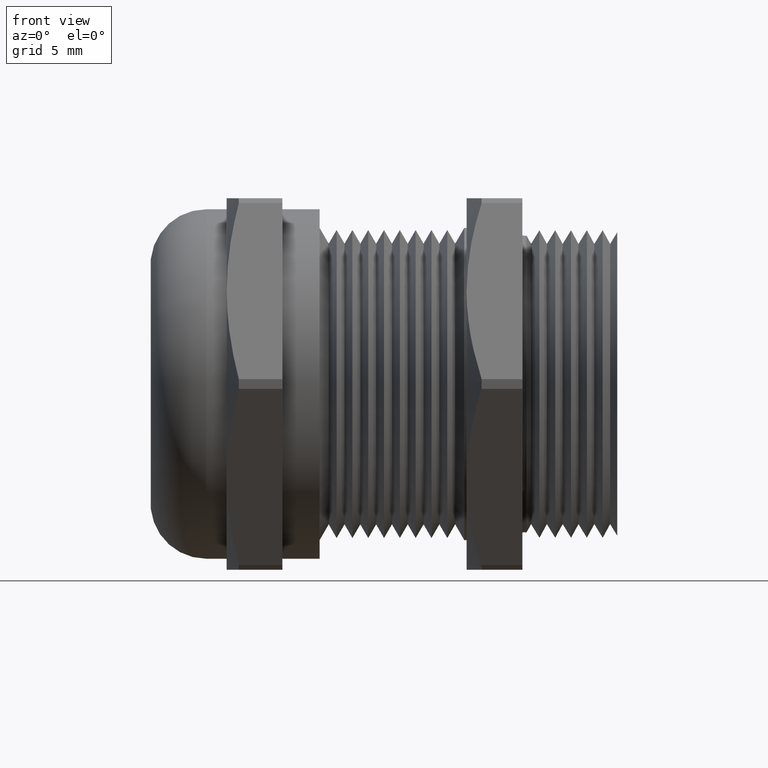
[diagram: clean part render]
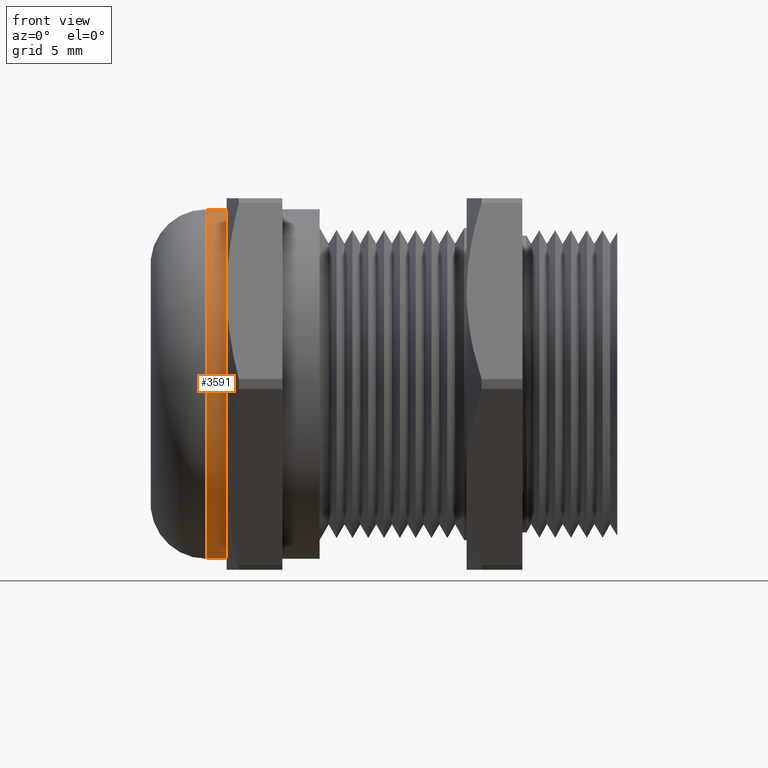
[diagram: same view with one face highlighted and labeled with its STEP entity id]
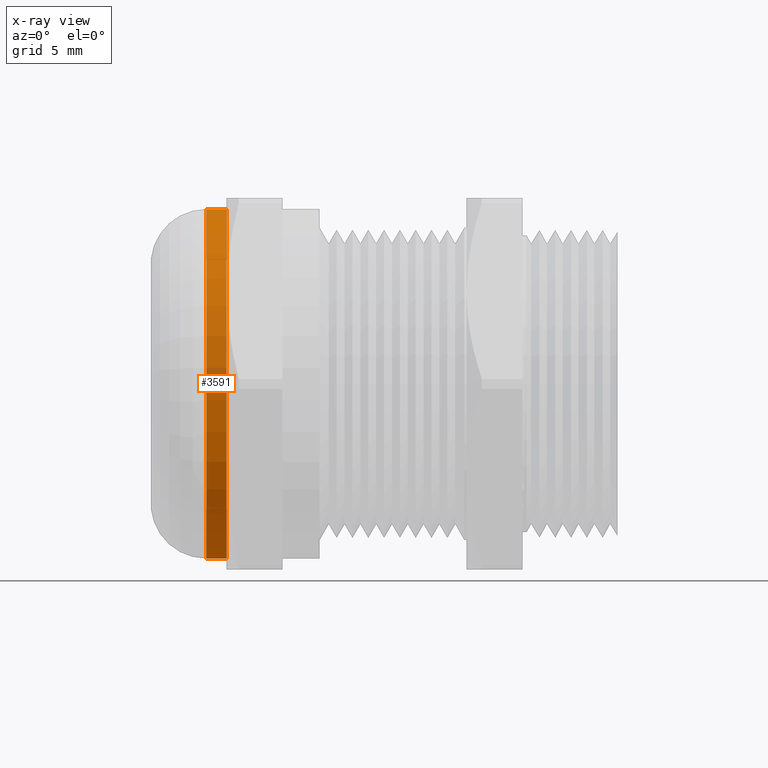
[diagram: x-ray of the same camera — body ghosted, the highlighted face saturated]
A machine part, front view. The second image highlights one B-rep face of the part: STEP entity #3591.
The next image is the same camera in x-ray: the body ghosted, the highlighted face saturated — about 0% of this face is hidden behind the body in this view.
In plain terms, the highlighted cylindrical surface (partial cylindrical patch) has radius 11.2277 mm, axis along (-1, 0, 0).
Its self-contained STEP definition (entity closure, byte-faithful):
#67 = EDGE_CURVE ( 'NONE', #3516, #3515, #606, .T. ) ;
#602 = DIRECTION ( 'NONE',  ( 0.0000000000000000000, 0.0000000000000000000, 1.000000000000000000 ) ) ;
#603 = DIRECTION ( 'NONE',  ( -1.000000000000000000, 0.0000000000000000000, 0.0000000000000000000 ) ) ;
#604 = CARTESIAN_POINT ( 'NONE',  ( -0.3979999999999999600, 0.0000000000000000000, 0.0000000000000000000 ) ) ;
#605 = AXIS2_PLACEMENT_3D ( 'NONE', #604, #603, #602 ) ;
#606 = CIRCLE ( 'NONE', #605, 0.4420349999999999600 ) ;
#2102 = CARTESIAN_POINT ( 'NONE',  ( -0.4497964024177694700, 0.0000000000000000000, 0.4420349999999999600 ) ) ;
#2103 = CARTESIAN_POINT ( 'NONE',  ( -0.4497964024177694700, 5.413367478611002500E-017, -0.4420349999999999600 ) ) ;
#2557 = CARTESIAN_POINT ( 'NONE',  ( -0.3979999999999999600, 5.413367478611002500E-017, -0.4420349999999999600 ) ) ;
#2558 = CARTESIAN_POINT ( 'NONE',  ( -0.3979999999999999600, 0.0000000000000000000, 0.4420349999999999600 ) ) ;
#2579 = DIRECTION ( 'NONE',  ( -1.000000000000000000, 0.0000000000000000000, 0.0000000000000000000 ) ) ;
#2580 = VECTOR ( 'NONE', #2579, 39.37007874015748100 ) ;
#2581 = CARTESIAN_POINT ( 'NONE',  ( -2.719493435091831800, 0.0000000000000000000, 0.4420349999999999600 ) ) ;
#2582 = LINE ( 'NONE', #2581, #2580 ) ;
#2583 = DIRECTION ( 'NONE',  ( -1.000000000000000000, 0.0000000000000000000, 0.0000000000000000000 ) ) ;
#2584 = VECTOR ( 'NONE', #2583, 39.37007874015748100 ) ;
#2585 = CARTESIAN_POINT ( 'NONE',  ( -2.719493435091831800, 5.413367478611002500E-017, -0.4420349999999999600 ) ) ;
#2586 = LINE ( 'NONE', #2585, #2584 ) ;
#2661 = CYLINDRICAL_SURFACE ( 'NONE', #2723, 0.4420349999999999600 ) ;
#2662 = FACE_OUTER_BOUND ( 'NONE', #3590, .T. ) ;
#2667 = CARTESIAN_POINT ( 'NONE',  ( -2.719493435091831800, 0.0000000000000000000, 0.0000000000000000000 ) ) ;
#2701 = DIRECTION ( 'NONE',  ( 0.0000000000000000000, 0.0000000000000000000, 1.000000000000000000 ) ) ;
#2702 = DIRECTION ( 'NONE',  ( 1.000000000000000000, 0.0000000000000000000, 0.0000000000000000000 ) ) ;
#2703 = CARTESIAN_POINT ( 'NONE',  ( -0.4497964024177694700, 0.0000000000000000000, 0.0000000000000000000 ) ) ;
#2704 = AXIS2_PLACEMENT_3D ( 'NONE', #2703, #2702, #2701 ) ;
#2705 = CIRCLE ( 'NONE', #2704, 0.4420349999999999600 ) ;
#2721 = DIRECTION ( 'NONE',  ( 0.0000000000000000000, 0.0000000000000000000, 1.000000000000000000 ) ) ;
#2722 = DIRECTION ( 'NONE',  ( -1.000000000000000000, 0.0000000000000000000, 0.0000000000000000000 ) ) ;
#2723 = AXIS2_PLACEMENT_3D ( 'NONE', #2667, #2722, #2721 ) ;
#3301 = VERTEX_POINT ( 'NONE', #2103 ) ;
#3302 = VERTEX_POINT ( 'NONE', #2102 ) ;
#3515 = VERTEX_POINT ( 'NONE', #2558 ) ;
#3516 = VERTEX_POINT ( 'NONE', #2557 ) ;
#3532 = EDGE_CURVE ( 'NONE', #3516, #3301, #2586, .T. ) ;
#3535 = EDGE_CURVE ( 'NONE', #3515, #3302, #2582, .T. ) ;
#3590 = EDGE_LOOP ( 'NONE', ( #3611, #3608, #3613, #3609 ) ) ;
#3591 = ADVANCED_FACE ( 'NONE', ( #2662 ), #2661, .T. ) ;
#3608 = ORIENTED_EDGE ( 'NONE', *, *, #67, .T. ) ;
#3609 = ORIENTED_EDGE ( 'NONE', *, *, #3612, .T. ) ;
#3611 = ORIENTED_EDGE ( 'NONE', *, *, #3532, .F. ) ;
#3612 = EDGE_CURVE ( 'NONE', #3302, #3301, #2705, .T. ) ;
#3613 = ORIENTED_EDGE ( 'NONE', *, *, #3535, .T. ) ;